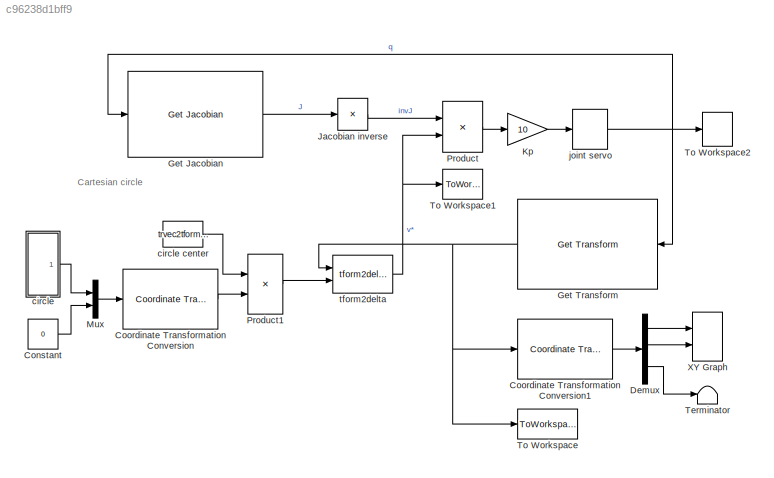
MODEL slx_c96238d1bff9
KIND model
CONFIG AbsTol = auto
CONFIG EnableMultiTasking = on
CONFIG FixedStep = auto
CONFIG InitFcn = if ~exist("puma","var") || ~exist("conf","var")\n   [puma,conf] = loadrvcrobot("puma");\nend
CONFIG MaxStep = auto
CONFIG MinStep = auto
CONFIG PreLoadFcn = % Load PUMA robot, so it's available for manipulator blocks\nif ~exist("puma","var") || ~exist("conf","var")\n   [puma,conf] = loadrvcrobot("puma");\nend
CONFIG RelTol = 1e-3
CONFIG SampleTimeConstraint = Unconstrained
CONFIG SolverName = ode45
CONFIG StartTime = 0.0
CONFIG StopTime = 10.0
BLOCK [Constant] Constant
  Value = 0
BLOCK [Reference] Coordinate Transformation Conversion  REF=robotcorelib/Coordinate Transformation Conversion
  Ports = [1, 1]
  SourceBlock = robotcorelib/Coordinate Transformation Conversion
  SourceProductBaseCode = NV,RO,RR,UV
  SourceType = robotics.slcore.internal.block.CoordinateTransformationConversion
BLOCK [Reference] Coordinate Transformation Conversion1  REF=robotcorelib/Coordinate Transformation Conversion
  Ports = [1, 1]
  SourceBlock = robotcorelib/Coordinate Transformation Conversion
  SourceProductBaseCode = NV,RO,RR,UV
  SourceType = robotics.slcore.internal.block.CoordinateTransformationConversion
BLOCK [Demux] Demux
  NameLocation = right
  Outputs = 3
  Ports = [1, 3]
BLOCK [Reference] Get Jacobian  REF=robotmaniplib/Get Jacobian
  Ports = [1, 1]
  SourceBlock = robotmaniplib/Get Jacobian
  SourceProductBaseCode = RO
  SourceType = Get Jacobian
BLOCK [Reference] Get Transform  REF=robotmaniplib/Get Transform
  Ports = [1, 1]
  SourceBlock = robotmaniplib/Get Transform
  SourceProductBaseCode = RO
  SourceType = Get Transform
BLOCK [Product] Jacobian inverse
  Inputs = /
  Multiplication = Matrix(*)
  Ports = [1, 1]
BLOCK [Gain] Kp
  Gain = 10
  OutDataTypeStr = Inherit: Same as input
  ParamDataTypeStr = Inherit: Same as input
  SaturateOnIntegerOverflow = on
BLOCK [Mux] Mux
  DisplayOption = bar
  Inputs = 2
  Ports = [2, 1]
BLOCK [Product] Product
  InputSameDT = on
  Multiplication = Matrix(*)
  OutDataTypeStr = Inherit: Same as first input
  Ports = [2, 1]
  RndMeth = Zero
  SaturateOnIntegerOverflow = on
BLOCK [Product] Product1
  InputSameDT = on
  Multiplication = Matrix(*)
  OutDataTypeStr = Inherit: Same as first input
  Ports = [2, 1]
  RndMeth = Zero
  SaturateOnIntegerOverflow = on
BLOCK [Terminator] Terminator
BLOCK [ToWorkspace] To Workspace
  MaxDataPoints = inf
  NameLocation = top
  Ports = [1]
  SampleTime = -1
  VariableName = T
BLOCK [ToWorkspace] To Workspace1
  MaxDataPoints = inf
  Ports = [1]
  SampleTime = -1
  VariableName = v
BLOCK [ToWorkspace] To Workspace2
  MaxDataPoints = inf
  NameLocation = top
  Ports = [1]
  SampleTime = -1
  VariableName = q
BLOCK [Record] XY Graph
  CompatibilityTag = XY
  FileSettingsInternal = {"entries":[{"content":{"excelSettings":{"content":{},"type":"Streamout.ExcelSettings"}},"type":"Streamout.FileSettingStorage","uuid":"f5bba9a0-4fa4-4e51-815b-597ca91e691c"}],"packageUris":["http://schema.mathworks.com/mf0/streamout_blocks/R2020a"],"version":"1.0"}
  Layout = [1 1]
  Ports = [2]
  SignalsInternal = {"entries":[{"content":{"signals":[{"content":{"blockPath":["sl_rrmc2/XY Graph"],"channel":[],"dimensions":[1,1],"domain":"sl_rrmc2/XY Graph","lineColor":"#a2142f","plots":[1],"port":1,"sid":[],"signalID":9,"signalName":"Demux:1"},"type":"RecordBlkView.Signal","uuid":"5c30134b-20f9-4b07-a7fb-7bf9c5299168"},{"content":{"blockPath":["sl_rrmc2/XY Graph"],"channel":[],"dimensions":[1,1],"domain":"sl_r...<+358ch>
  VisualizationBindings = {"xyplotplugin":{"info":[{"series":[{"bindingParametersList":[{"parameter":"X-Axis","signalID":9,"signalName":"Demux:1"},{"parameter":"Y-Axis","signalID":12,"signalName":"Demux:2"}],"seriesID":63756}],"subplotID":1}]}}
  st = -1
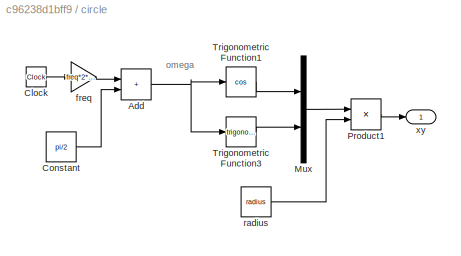
BLOCK [SubSystem] circle
  Ports = [0, 1]
  RequestExecContextInheritance = off
BLOCK [Constant] circle center
  Value = trvec2tform(se3(puma.getTransform(conf.qn, "link6")).trvec)
BLOCK [Sum] circle/Add
  IconShape = rectangular
  Ports = [2, 1]
BLOCK [Clock] circle/Clock
BLOCK [Constant] circle/Constant
  Value = pi/2
BLOCK [Mux] circle/Mux
  DisplayOption = bar
  Inputs = 2
  Ports = [2, 1]
BLOCK [Product] circle/Product1
  Multiplication = Matrix(*)
  Ports = [2, 1]
  RndMeth = Zero
BLOCK [Trigonometry] circle/Trigonometric Function1
  Operator = cos
  Ports = [1, 1]
BLOCK [Trigonometry] circle/Trigonometric Function3
  Ports = [1, 1]
BLOCK [Gain] circle/freq
  Gain = freq*2*pi
BLOCK [Constant] circle/radius
  Value = radius
BLOCK [Outport] circle/xy
BLOCK [DiscreteIntegrator] joint servo
  ICPrevOutput = DiscIntNeverNeededParam
  ICPrevScaledInput = DiscIntNeverNeededParam
  InitialCondition = conf.qn'
  Ports = [1, 1]
  SampleTime = 0.05
BLOCK [Reference] tform2delta  REF=roblocks/tform2delta  (lib defined in mdl_2a292b13c81b, mdl_69400f8cfe22, +12 more)
  Ports = [2, 1]
  SourceBlock = roblocks/tform2delta
ANNOTATION (root): Cartesian circle
ANNOTATION circle: omega
LINE Constant:1 -> Mux:2
LINE Coordinate Transformation Conversion1:1 -> Demux:1
LINE Coordinate Transformation Conversion:1 -> Product1:2
LINE Demux:1 -> XY Graph:1
LINE Demux:2 -> XY Graph:2
LINE Demux:3 -> Terminator:1
LINE Get Jacobian:1 -> Jacobian inverse:1
NET Get Transform:1 -> Coordinate Transformation Conversion1:1, To Workspace:1, tform2delta:1
LINE Jacobian inverse:1 -> Product:1
LINE Kp:1 -> joint servo:1
LINE Mux:1 -> Coordinate Transformation Conversion:1
LINE Product1:1 -> tform2delta:2
LINE Product:1 -> Kp:1
LINE circle center:1 -> Product1:1
NET circle/Add:1 -> circle/Trigonometric Function1:1, circle/Trigonometric Function3:1
LINE circle/Clock:1 -> circle/freq:1
LINE circle/Constant:1 -> circle/Add:2
LINE circle/Mux:1 -> circle/Product1:1
LINE circle/Product1:1 -> circle/xy:1
LINE circle/Trigonometric Function1:1 -> circle/Mux:1
LINE circle/Trigonometric Function3:1 -> circle/Mux:2
LINE circle/freq:1 -> circle/Add:1
LINE circle/radius:1 -> circle/Product1:2
LINE circle:1 -> Mux:1
NET joint servo:1 -> Get Jacobian:1, Get Transform:1, To Workspace2:1
NET tform2delta:1 -> Product:2, To Workspace1:1
note: NET lines group one-source signal fan-out (src -> all destinations, sorted); 1:1 wires keep LINE
